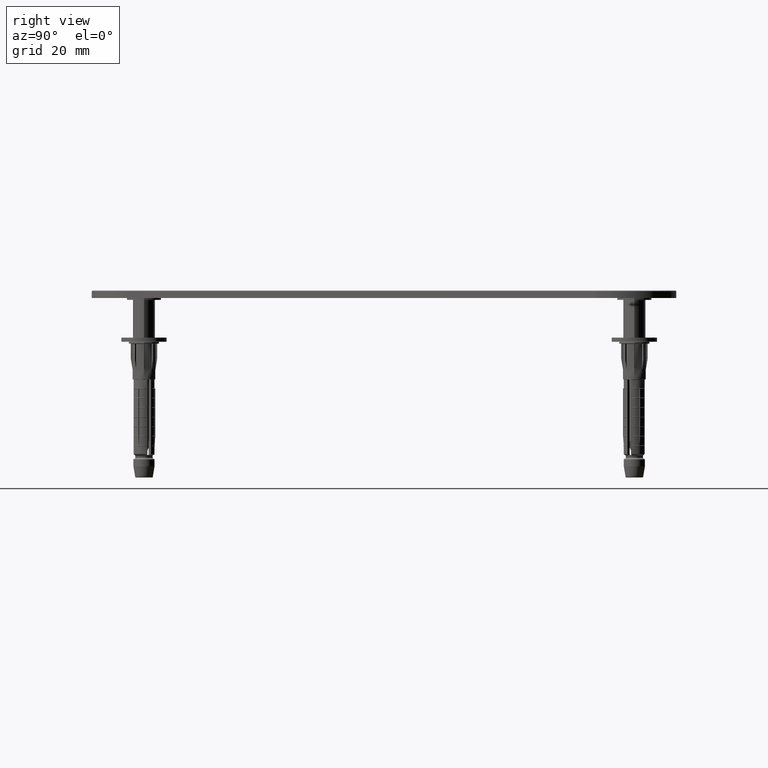
[diagram: clean part render]
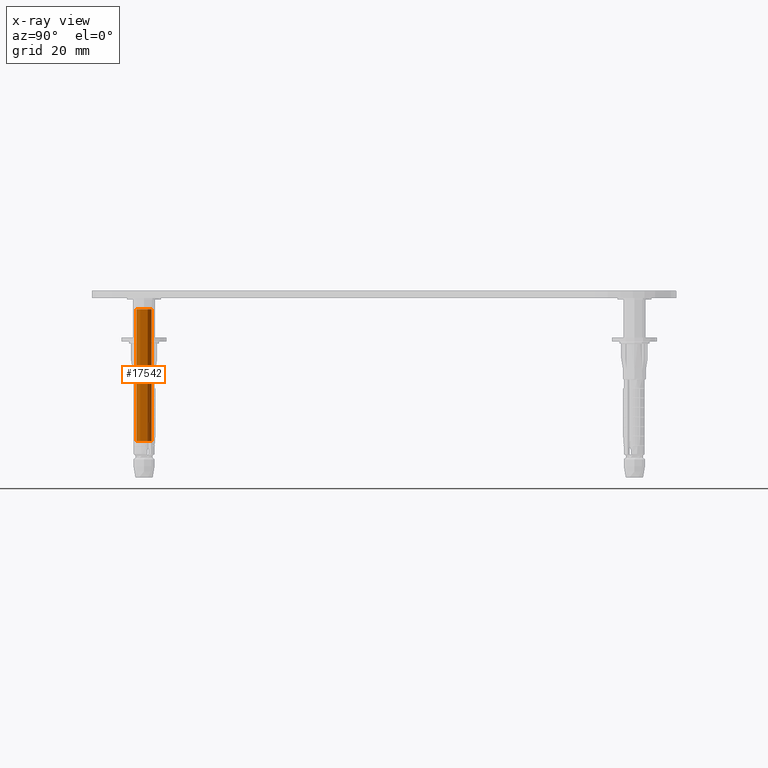
[diagram: x-ray — body ghosted, one internal face saturated and labeled with its STEP entity id]
A machine part, right view, then the same camera in x-ray: the body is ghosted and one INTERNAL B-rep face — a face not visible from any outside direction — is saturated and labeled: STEP entity #17542.
In plain terms, the highlighted cylindrical surface (edge-blend (fillet) strip) has radius 2 mm, axis along (-0, -0, -1).
Its self-contained STEP definition (entity closure, byte-faithful):
#4786 = DIRECTION ( 'NONE',  ( -2.548694494986879549E-32, -1.530808498934207841E-17, -1.000000000000000000 ) ) ;
#6334 = CARTESIAN_POINT ( 'NONE',  ( 5.618597014461522366E-31, 1.999999999999995781, -0.5000000000000073275 ) ) ;
#9337 = VERTEX_POINT ( 'NONE', #25937 ) ;
#10055 = EDGE_CURVE ( 'NONE', #27472, #9337, #25839, .T. ) ;
#10136 = VECTOR ( 'NONE', #18583, 1000.000000000000000 ) ;
#10179 = VECTOR ( 'NONE', #14759, 1000.000000000000000 ) ;
#11143 = VERTEX_POINT ( 'NONE', #6334 ) ;
#11989 = EDGE_CURVE ( 'NONE', #11143, #27472, #28176, .T. ) ;
#13957 = ORIENTED_EDGE ( 'NONE', *, *, #10055, .T. ) ;
#14759 = DIRECTION ( 'NONE',  ( -2.548694494986879549E-32, -1.530808498934207841E-17, -1.000000000000000000 ) ) ;
#15752 = CARTESIAN_POINT ( 'NONE',  ( 0.000000000000000000, 0.000000000000000000, -0.5000000000000073275 ) ) ;
#16577 = DIRECTION ( 'NONE',  ( -2.548694494986879549E-32, -1.530808498934207841E-17, -1.000000000000000000 ) ) ;
#16585 = CARTESIAN_POINT ( 'NONE',  ( 2.629838028884532811E-41, 2.000000000000009770, -35.40999999999990422 ) ) ;
#16776 = DIRECTION ( 'NONE',  ( 1.314919014442269209E-41, 1.000000000000000000, 0.000000000000000000 ) ) ;
#17542 = ADVANCED_FACE ( 'NONE', ( #19513 ), #19105, .T. ) ;
#18583 = DIRECTION ( 'NONE',  ( -2.548694494986879549E-32, -1.530808498934207841E-17, -1.000000000000000000 ) ) ;
#18616 = CARTESIAN_POINT ( 'NONE',  ( 2.449293598294719726E-16, -1.999999999999995781, -0.5000000000000073275 ) ) ;
#18955 = LINE ( 'NONE', #20823, #10179 ) ;
#19105 = CYLINDRICAL_SURFACE ( 'NONE', #22608, 1.999999999999995781 ) ;
#19513 = FACE_OUTER_BOUND ( 'NONE', #25275, .T. ) ;
#20273 = ORIENTED_EDGE ( 'NONE', *, *, #21389, .F. ) ;
#20823 = CARTESIAN_POINT ( 'NONE',  ( 2.629838028884532811E-41, 2.000000000000009770, -39.99999999999988631 ) ) ;
#21389 = EDGE_CURVE ( 'NONE', #11143, #34502, #18955, .T. ) ;
#22590 = CARTESIAN_POINT ( 'NONE',  ( 0.000000000000000000, 1.387778780781445676E-14, -35.40999999999990422 ) ) ;
#22608 = AXIS2_PLACEMENT_3D ( 'NONE', #25094, #16577, #28231 ) ;
#22695 = ORIENTED_EDGE ( 'NONE', *, *, #11989, .T. ) ;
#23468 = AXIS2_PLACEMENT_3D ( 'NONE', #22590, #4786, #16776 ) ;
#25094 = CARTESIAN_POINT ( 'NONE',  ( 0.000000000000000000, 1.387778780781445676E-14, -39.99999999999988631 ) ) ;
#25275 = EDGE_LOOP ( 'NONE', ( #22695, #13957, #36194, #20273 ) ) ;
#25839 = LINE ( 'NONE', #27503, #10136 ) ;
#25937 = CARTESIAN_POINT ( 'NONE',  ( 2.449293598294702963E-16, -1.999999999999981792, -35.40999999999990422 ) ) ;
#27472 = VERTEX_POINT ( 'NONE', #18616 ) ;
#27503 = CARTESIAN_POINT ( 'NONE',  ( 2.449293598294697047E-16, -1.999999999999981792, -39.99999999999988631 ) ) ;
#28176 = CIRCLE ( 'NONE', #34927, 1.999999999999995781 ) ;
#28231 = DIRECTION ( 'NONE',  ( 1.314919014442269209E-41, 1.000000000000000000, 0.000000000000000000 ) ) ;
#29061 = CIRCLE ( 'NONE', #23468, 1.999999999999995781 ) ;
#30553 = DIRECTION ( 'NONE',  ( -2.548694494986879549E-32, -1.530808498934202910E-17, -1.000000000000000000 ) ) ;
#33666 = DIRECTION ( 'NONE',  ( -1.314919014442268700E-41, -1.000000000000000000, 0.000000000000000000 ) ) ;
#34502 = VERTEX_POINT ( 'NONE', #16585 ) ;
#34927 = AXIS2_PLACEMENT_3D ( 'NONE', #15752, #30553, #33666 ) ;
#36194 = ORIENTED_EDGE ( 'NONE', *, *, #37883, .F. ) ;
#37883 = EDGE_CURVE ( 'NONE', #34502, #9337, #29061, .T. ) ;